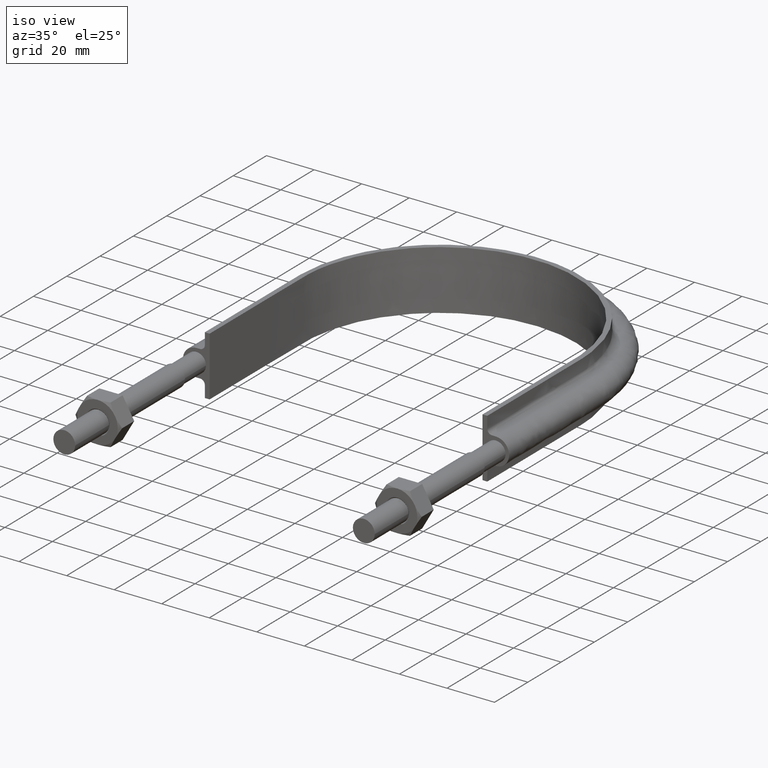
[diagram: clean part render]
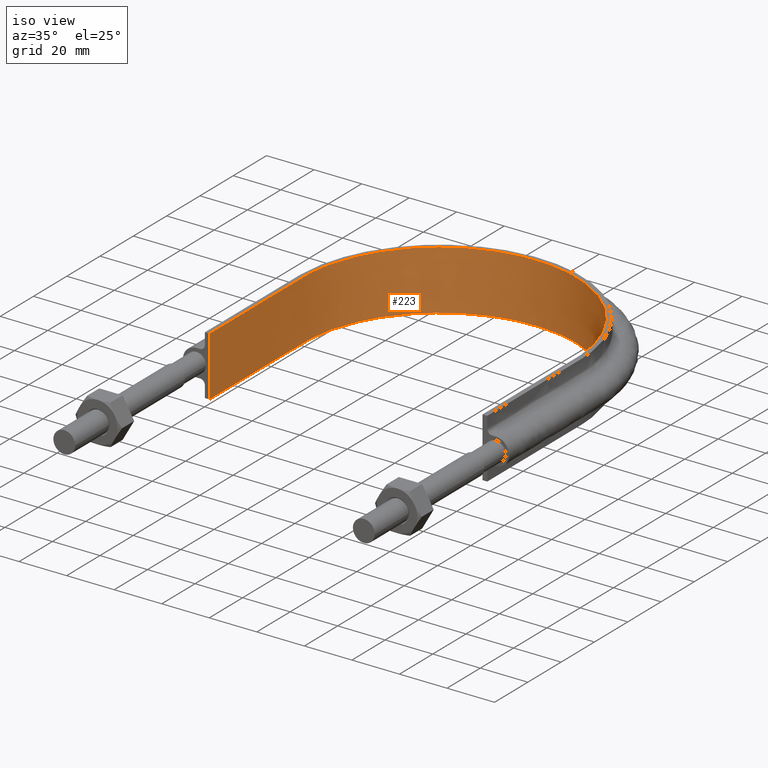
[diagram: tour spotlight — one face highlighted and labeled with its STEP entity id]
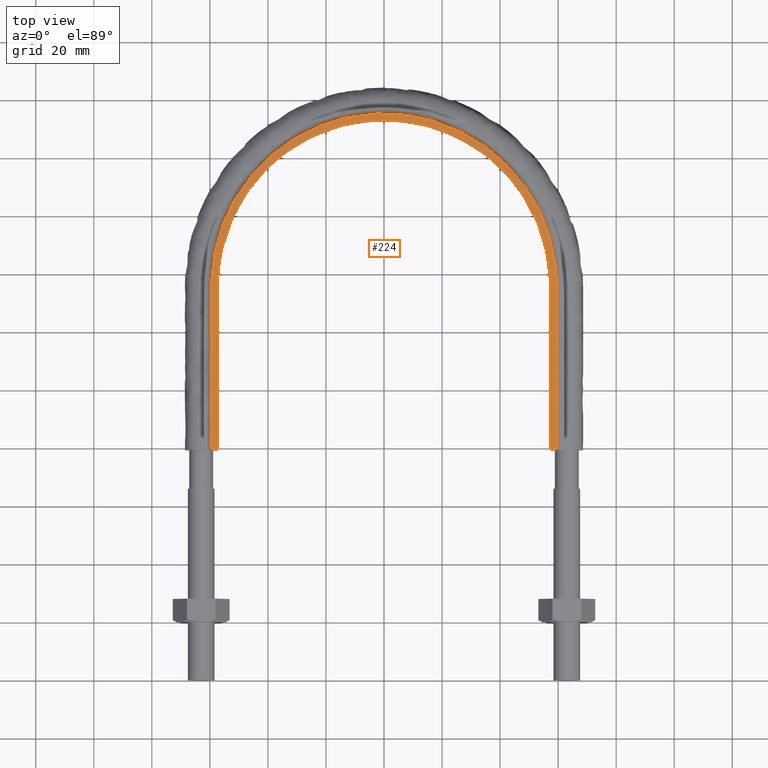
[diagram: tour spotlight — one face highlighted and labeled with its STEP entity id]
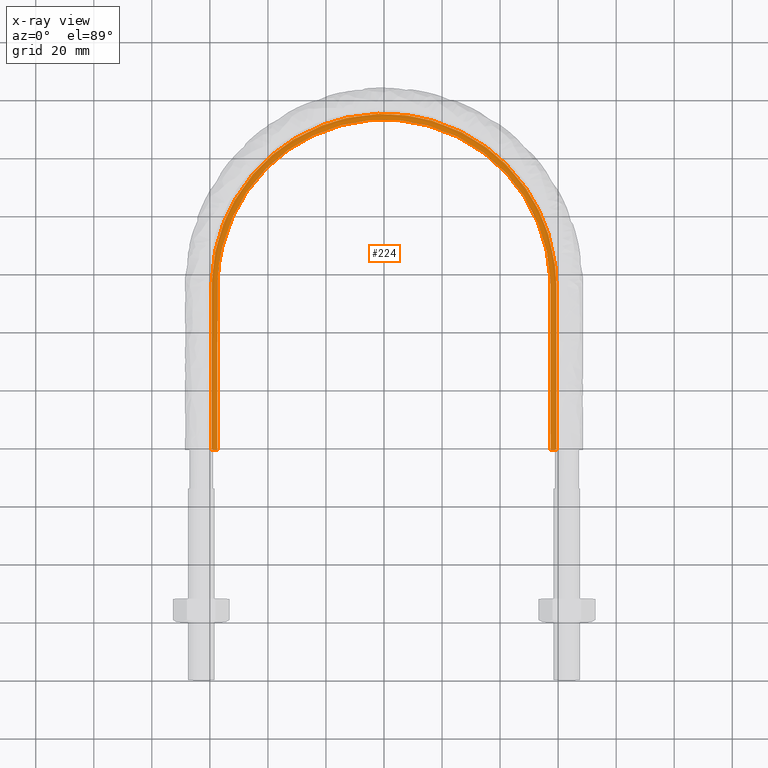
[diagram: x-ray of the same camera — body ghosted, this tour face saturated]
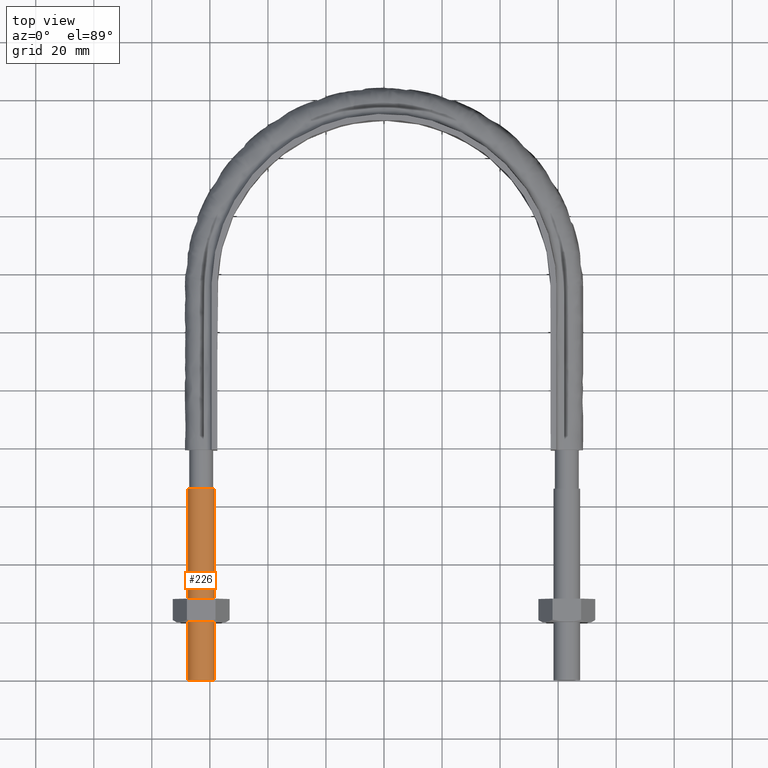
[diagram: tour spotlight — one face highlighted and labeled with its STEP entity id]
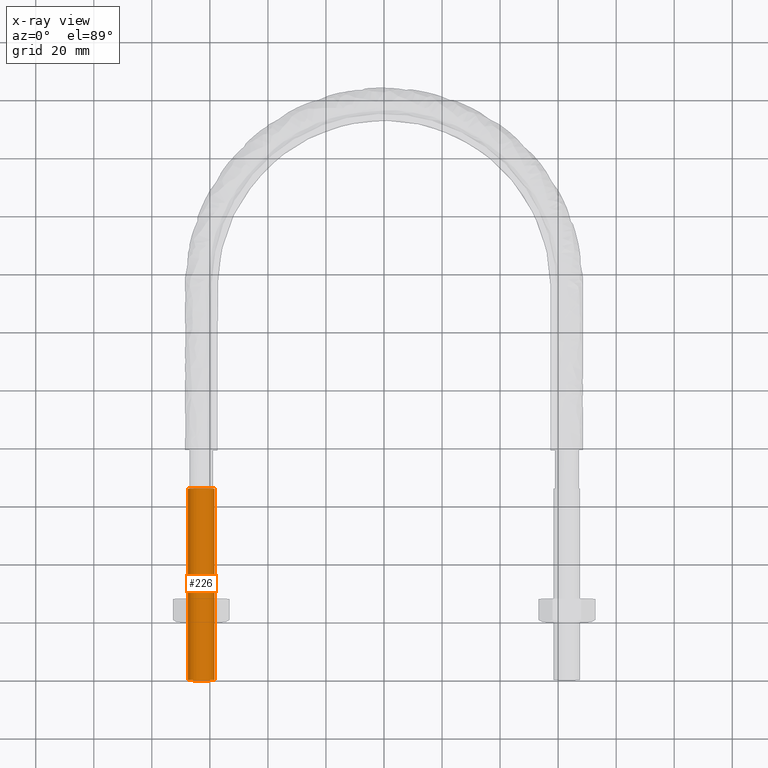
[diagram: x-ray of the same camera — body ghosted, this tour face saturated]
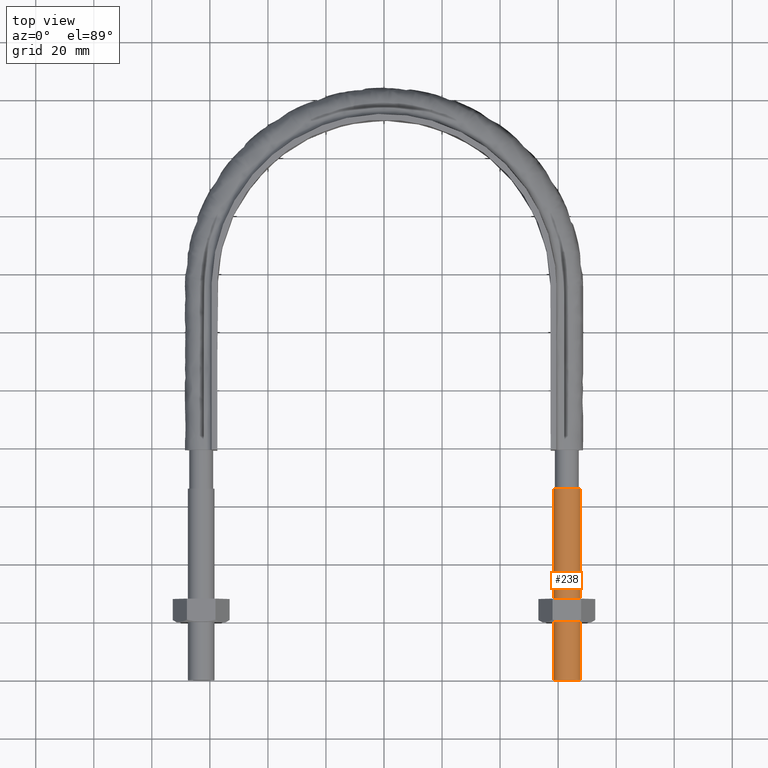
[diagram: tour spotlight — one face highlighted and labeled with its STEP entity id]
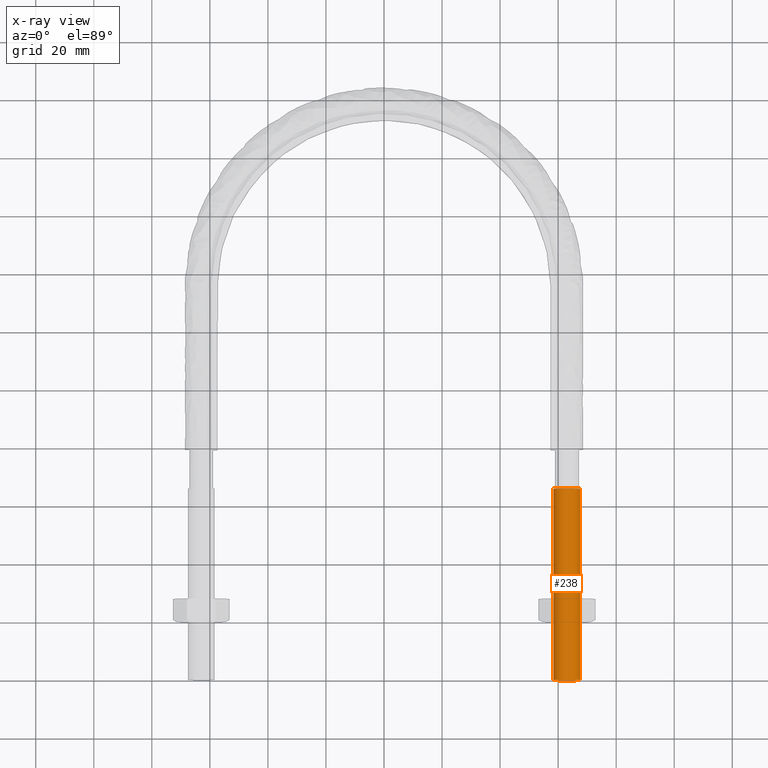
[diagram: x-ray of the same camera — body ghosted, this tour face saturated]
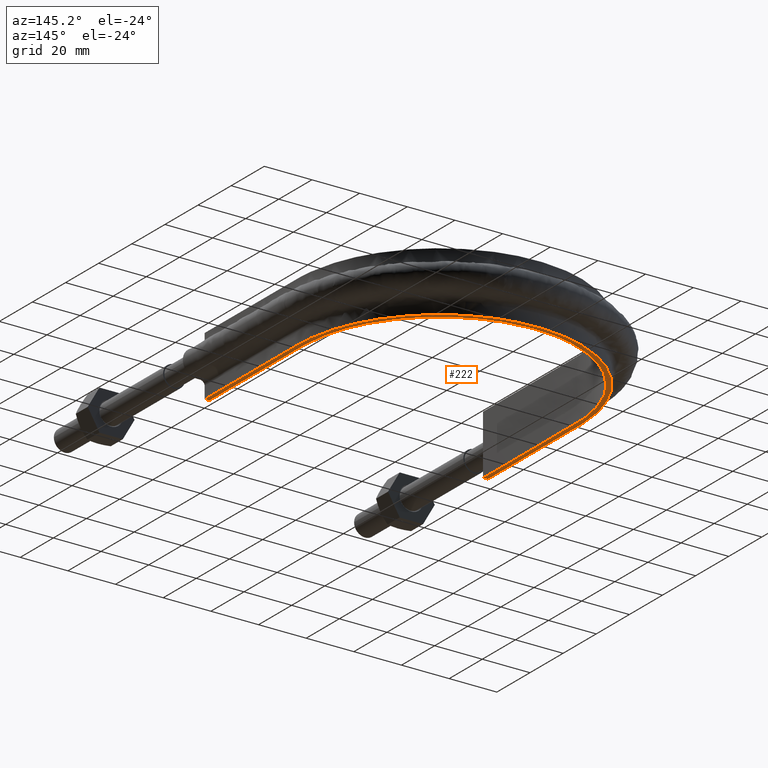
[diagram: tour spotlight — one face highlighted and labeled with its STEP entity id]
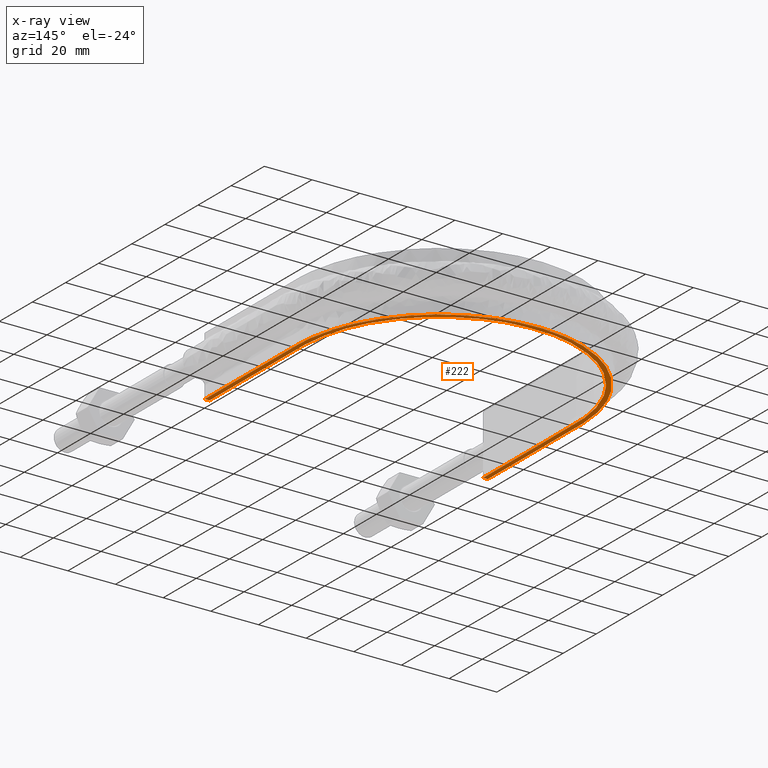
[diagram: x-ray of the same camera — body ghosted, this tour face saturated]
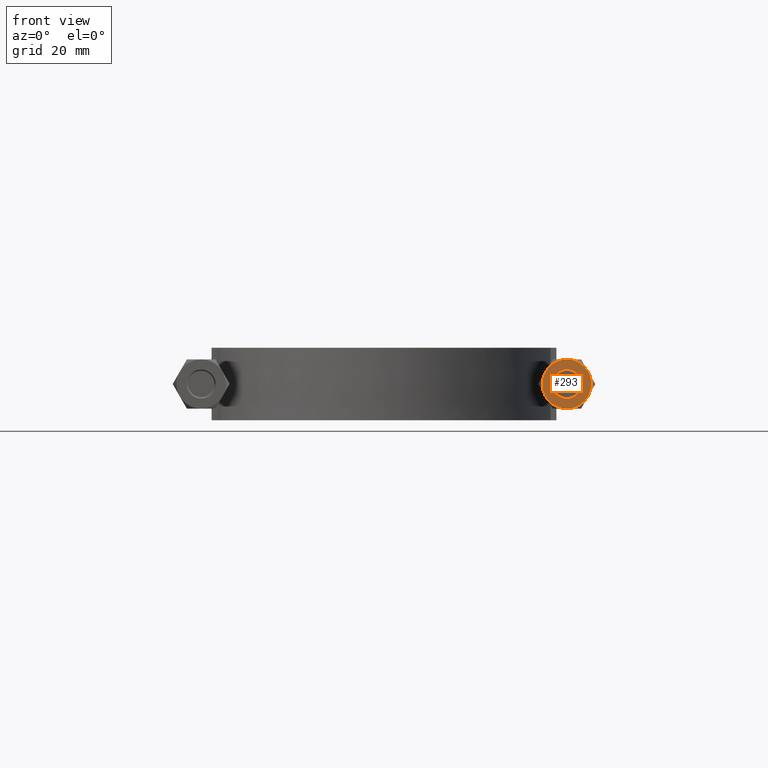
[diagram: tour spotlight — one face highlighted and labeled with its STEP entity id]
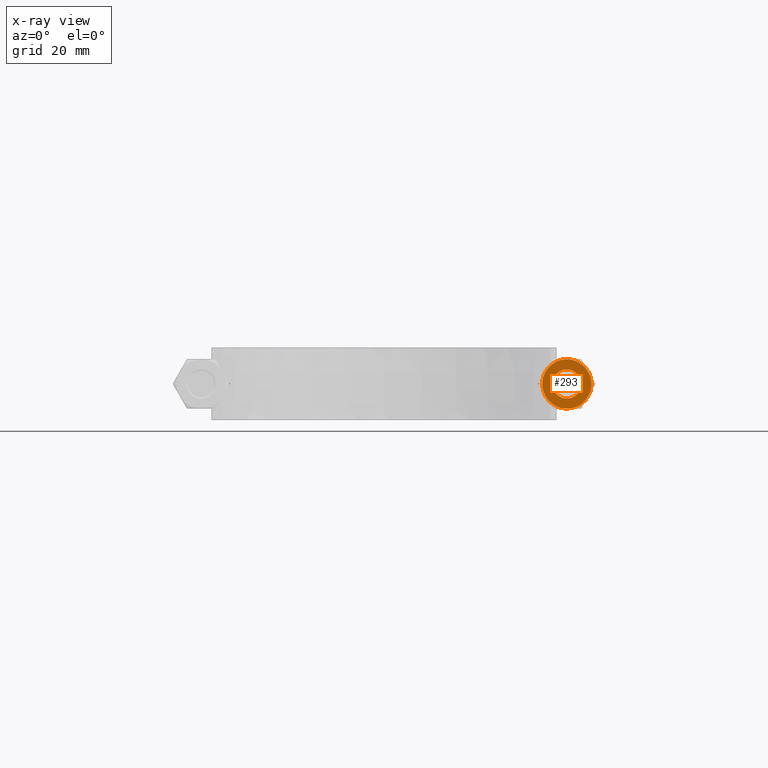
[diagram: x-ray of the same camera — body ghosted, this tour face saturated]
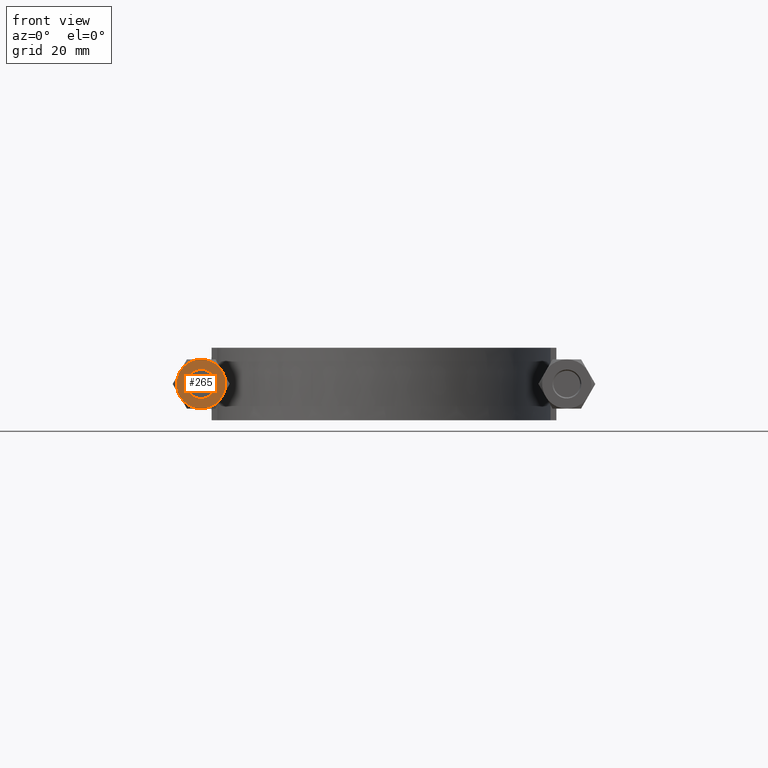
[diagram: tour spotlight — one face highlighted and labeled with its STEP entity id]
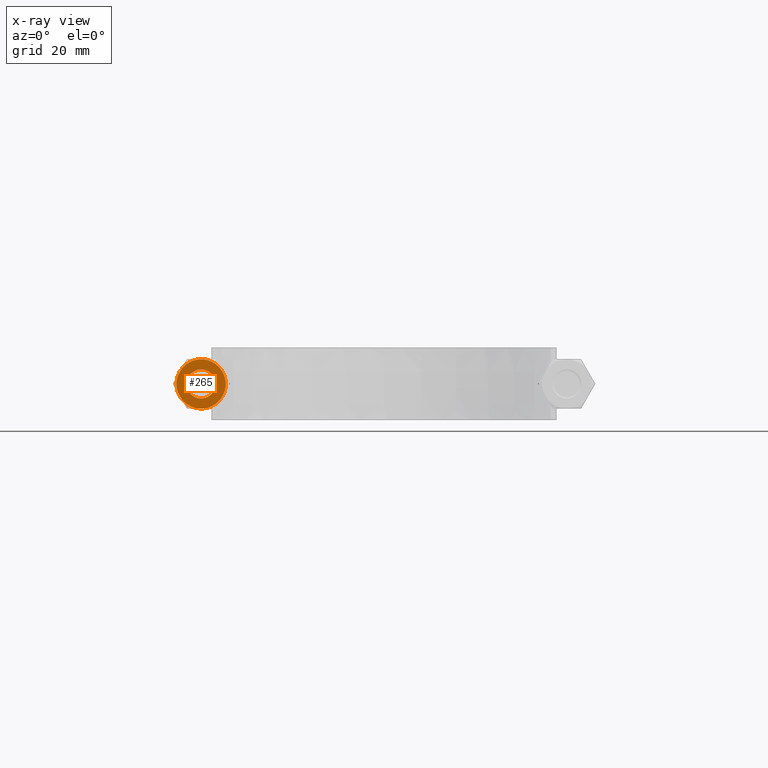
[diagram: x-ray of the same camera — body ghosted, this tour face saturated]
A machine part: a face-by-face anatomy tour. The part has 75 B-rep faces; the first image is the clean iso view, then the 7 largest visible faces are spotlighted one at a time (largest first), each with its STEP entity span.

Face 1 — iso view, entity #223. In plain terms, the highlighted face is a SurfaceOfExtrusion surface.
Definition (entity closure, byte-faithful):
#223 = ADVANCED_FACE( '', ( #303 ), #304, .T. );
#303 = FACE_OUTER_BOUND( '', #965, .T. );
#304 = SURFACE_OF_LINEAR_EXTRUSION( '', #966, #967 );
#965 = EDGE_LOOP( '', ( #1309, #1310, #1311, #1312 ) );
#966 = B_SPLINE_CURVE_WITH_KNOTS( '', 3, ( #1313, #1314, #1315, #1316, #1317, #1318, #1319, #1320, #1321, #1322, #1323, #1324, #1325, #1326, #1327, #1328 ), .UNSPECIFIED., .F., .F., ( 4, 3, 1, 1, 1, 1, 1, 1, 3, 4 ), ( -8.93693843594010, -8.00000000000000, -7.00000000000000, -6.00000000000000, -5.00000000000000, -4.00000000000000, -3.00000000000000, -2.00000000000000, -1.00000000000000, -0.0630615640599001 ), .UNSPECIFIED. );
#967 = VECTOR( '', #1329, 1000.00000000000 );
#1309 = ORIENTED_EDGE( '', *, *, #1817, .T. );
#1310 = ORIENTED_EDGE( '', *, *, #1827, .T. );
#1311 = ORIENTED_EDGE( '', *, *, #1825, .F. );
#1312 = ORIENTED_EDGE( '', *, *, #1828, .T. );
#1313 = CARTESIAN_POINT( '', ( 57.4000000000000, 79.3000000000000, 12.5000100000910 ) );
#1314 = CARTESIAN_POINT( '', ( 57.4000000000000, 98.0700000000000, 12.5000100000910 ) );
#1315 = CARTESIAN_POINT( '', ( 57.4000000000000, 116.840000000000, 12.5000100000910 ) );
#1316 = CARTESIAN_POINT( '', ( 57.4000000000000, 135.610000000000, 12.5000100000910 ) );
#1317 = CARTESIAN_POINT( '', ( 57.4000000000000, 144.180493203978, 12.5000100000910 ) );
#1318 = CARTESIAN_POINT( '', ( 53.4810424094545, 161.371852668646, 12.5000100000910 ) );
#1319 = CARTESIAN_POINT( '', ( 37.0100296725023, 182.017335605858, 12.5000100000910 ) );
#1320 = CARTESIAN_POINT( '', ( 13.2087266606841, 193.481567469912, 12.5000100000910 ) );
#1321 = CARTESIAN_POINT( '', ( -13.2087266606841, 193.481567469912, 12.5000100000910 ) );
#1322 = CARTESIAN_POINT( '', ( -37.0100296725023, 182.017335605858, 12.5000100000910 ) );
#1323 = CARTESIAN_POINT( '', ( -53.4810424094545, 161.371852668646, 12.5000100000910 ) );
#1324 = CARTESIAN_POINT( '', ( -57.4000000000000, 144.180493203978, 12.5000100000910 ) );
#1325 = CARTESIAN_POINT( '', ( -57.4000000000000, 135.610000000000, 12.5000100000910 ) );
#1326 = CARTESIAN_POINT( '', ( -57.4000000000000, 116.840000000000, 12.5000100000910 ) );
#1327 = CARTESIAN_POINT( '', ( -57.4000000000000, 98.0700000000000, 12.5000100000910 ) );
#1328 = CARTESIAN_POINT( '', ( -57.4000000000000, 79.3000000000000, 12.5000100000910 ) );
#1329 = DIRECTION( '', ( 0.000000000000000, 0.000000000000000, -1.00000000000000 ) );
#1817 = EDGE_CURVE( '', #1967, #1968, #1969, .T. );
#1825 = EDGE_CURVE( '', #1980, #1982, #1983, .T. );
#1827 = EDGE_CURVE( '', #1968, #1982, #1985, .F. );
#1828 = EDGE_CURVE( '', #1980, #1967, #1986, .T. );
#1967 = VERTEX_POINT( '', #2213 );
#1968 = VERTEX_POINT( '', #2214 );
#1969 = LINE( '', #2215, #2216 );
#1980 = VERTEX_POINT( '', #2319 );
#1982 = VERTEX_POINT( '', #2322 );
#1983 = LINE( '', #2323, #2324 );
#1985 = B_SPLINE_CURVE_WITH_KNOTS( '', 3, ( #2327, #2328, #2329, #2330, #2331, #2332, #2333, #2334, #2335, #2336, #2337, #2338, #2339, #2340, #2341, #2342 ), .UNSPECIFIED., .F., .F., ( 4, 3, 1, 1, 1, 1, 1, 1, 3, 4 ), ( -8.93693843594010, -8.00000000000000, -7.00000000000000, -6.00000000000000, -5.00000000000000, -4.00000000000000, -3.00000000000000, -2.00000000000000, -1.00000000000000, -0.0630615640599001 ), .UNSPECIFIED. );
#1986 = B_SPLINE_CURVE_WITH_KNOTS( '', 3, ( #2343, #2344, #2345, #2346, #2347, #2348, #2349, #2350, #2351, #2352, #2353, #2354, #2355, #2356, #2357, #2358, #2359, #2360, #2361, #2362, #2363, #2364, #2365, #2366, #2367, #2368, #2369, #2370, #2371, #2372, #2373, #2374, #2375, #2376, #2377, #2378, #2379, #2380, #2381, #2382, #2383, #2384, #2385, #2386, #2387, #2388, #2389, #2390, #2391, #2392, #2393, #2394, #2395, #2396, #2397, #2398, #2399, #2400, #2401, #2402, #2403, #2404, #2405, #2406, #2407, #2408, #2409, #2410, #2411, #2412, #2413, #2414, #2415, #2416, #2417, #2418, #2419, #2420, #2421, #2422, #2423, #2424, #2425, #2426, #2427, #2428, #2429, #2430 ), .UNSPECIFIED., .F., .F., ( 4, 1, 2, 2, 2, 2, 2, 2, 2, 2, 2, 2, 2, 2, 2, 2, 2, 2, 2, 2, 2, 2, 2, 2, 2, 2, 2, 2, 2, 2, 2, 2, 2, 2, 2, 2, 2, 2, 2, 2, 2, 2, 2, 1, 4 ), ( 1.38777878078145E-017, 0.0368006591004065, 0.0552009886506098, 0.0575010298443853, 0.0598010710381607, 0.0644011534257116, 0.0736013182008134, 0.0782014005883642, 0.0805014417821396, 0.0828014829759150, 0.0920016477510166, 0.0966017301385674, 0.0989017713323428, 0.101201812526118, 0.110401977301220, 0.115002059688771, 0.117302100882546, 0.119602142076322, 0.128802306851423, 0.133402389238974, 0.135702430432750, 0.138002471626525, 0.147202636401627, 0.156402801176729, 0.158702842370504, 0.161002883564280, 0.165602965951830, 0.174803130726932, 0.177103171920708, 0.179403213114483, 0.184003295502034, 0.193203460277136, 0.195503501470911, 0.197803542664687, 0.202403625052238, 0.211603789827340, 0.213903831021115, 0.216203872214890, 0.220803954602441, 0.230004119377543, 0.234604201765094, 0.236904242958870, 0.239204284152645, 0.257604613702848, 0.294405272803255 ), .UNSPECIFIED. );
#2213 = CARTESIAN_POINT( '', ( -57.4000000000000, 79.3000000000000, 12.5000000000000 ) );
#2214 = CARTESIAN_POINT( '', ( -57.4000000000000, 79.3000000000000, -12.5000000000000 ) );
#2215 = CARTESIAN_POINT( '', ( -57.4000000000000, 79.3000000000000, 12.5000100000910 ) );
#2216 = VECTOR( '', #2855, 1000.00000000000 );
#2319 = CARTESIAN_POINT( '', ( 57.4000000000000, 79.3000000000000, 12.5000000000000 ) );
#2322 = CARTESIAN_POINT( '', ( 57.4000000000000, 79.3000000000000, -12.5000000000000 ) );
#2323 = CARTESIAN_POINT( '', ( 57.4000000000000, 79.3000000000000, 12.5000100000910 ) );
#2324 = VECTOR( '', #2859, 1000.00000000000 );
#2327 = CARTESIAN_POINT( '', ( 57.4000000000000, 79.3000000000000, -12.5000000000000 ) );
#2328 = CARTESIAN_POINT( '', ( 57.4000000000000, 98.0700000000000, -12.5000000000000 ) );
#2329 = CARTESIAN_POINT( '', ( 57.4000000000000, 116.840000000000, -12.5000000000000 ) );
#2330 = CARTESIAN_POINT( '', ( 57.4000000000000, 135.610000000000, -12.5000000000000 ) );
#2331 = CARTESIAN_POINT( '', ( 57.4000000000000, 144.180493203978, -12.5000000000000 ) );
#2332 = CARTESIAN_POINT( '', ( 53.4810424094545, 161.371852668646, -12.5000000000000 ) );
#2333 = CARTESIAN_POINT( '', ( 37.0100296725023, 182.017335605858, -12.5000000000000 ) );
#2334 = CARTESIAN_POINT( '', ( 13.2087266606841, 193.481567469912, -12.5000000000000 ) );
#2335 = CARTESIAN_POINT( '', ( -13.2087266606841, 193.481567469912, -12.5000000000000 ) );
#2336 = CARTESIAN_POINT( '', ( -37.0100296725023, 182.017335605858, -12.5000000000000 ) );
#2337 = CARTESIAN_POINT( '', ( -53.4810424094545, 161.371852668646, -12.5000000000000 ) );
#2338 = CARTESIAN_POINT( '', ( -57.4000000000000, 144.180493203978, -12.5000000000000 ) );
#2339 = CARTESIAN_POINT( '', ( -57.4000000000000, 135.610000000000, -12.5000000000000 ) );
#2340 = CARTESIAN_POINT( '', ( -57.4000000000000, 116.840000000000, -12.5000000000000 ) );
#2341 = CARTESIAN_POINT( '', ( -57.4000000000000, 98.0700000000000, -12.5000000000000 ) );
#2342 = CARTESIAN_POINT( '', ( -57.4000000000000, 79.3000000000000, -12.5000000000000 ) );
#2343 = CARTESIAN_POINT( '', ( 57.4000000000000, 79.3000000000000, 12.5000000000000 ) );
#2344 = CARTESIAN_POINT( '', ( 57.4000000000000, 91.5668971504807, 12.5000000000000 ) );
#2345 = CARTESIAN_POINT( '', ( 57.4000000000000, 109.967242876202, 12.5000000000000 ) );
#2346 = CARTESIAN_POINT( '', ( 57.4000000000000, 128.367588601923, 12.5000000000000 ) );
#2347 = CARTESIAN_POINT( '', ( 57.4000000000000, 135.267718249068, 12.5000000000000 ) );
#2348 = CARTESIAN_POINT( '', ( 57.4036066457802, 136.034404103252, 12.5000000000000 ) );
#2349 = CARTESIAN_POINT( '', ( 57.3712056389476, 137.567723284528, 12.5000000000000 ) );
#2350 = CARTESIAN_POINT( '', ( 57.3393359788148, 138.335375304587, 12.5000000000000 ) );
#2351 = CARTESIAN_POINT( '', ( 57.1976234100830, 140.630663469964, 12.5000000000000 ) );
#2352 = CARTESIAN_POINT( '', ( 57.0421967518527, 142.147180453960, 12.5000000000000 ) );
#2353 = CARTESIAN_POINT( '', ( 56.4004013757545, 146.657352705709, 12.5000000000000 ) );
#2354 = CARTESIAN_POINT( '', ( 55.7399883057786, 149.611959318388, 12.5000000000000 ) );
#2355 = CARTESIAN_POINT( '', ( 54.4013047063943, 153.965777471156, 12.5000000000000 ) );
#2356 = CARTESIAN_POINT( '', ( 53.8966972928596, 155.403952132018, 12.5000000000000 ) );
#2357 = CARTESIAN_POINT( '', ( 53.0487681131459, 157.540793277909, 12.5000000000000 ) );
#2358 = CARTESIAN_POINT( '', ( 52.7511260023257, 158.248939019185, 12.5000000000000 ) );
#2359 = CARTESIAN_POINT( '', ( 52.1306487491249, 159.645579267383, 12.5000000000000 ) );
#2360 = CARTESIAN_POINT( '', ( 51.8071932048134, 160.335643312284, 12.5000000000000 ) );
#2361 = CARTESIAN_POINT( '', ( 50.1243560027938, 163.745011154793, 12.5000000000000 ) );
#2362 = CARTESIAN_POINT( '', ( 48.5704537429598, 166.342805722192, 12.5000000000000 ) );
#2363 = CARTESIAN_POINT( '', ( 45.9378759805746, 170.051022440817, 12.5000000000000 ) );
#2364 = CARTESIAN_POINT( '', ( 45.0097482486540, 171.255485755391, 12.5000000000000 ) );
#2365 = CARTESIAN_POINT( '', ( 43.5399840512470, 173.013724230868, 12.5000000000000 ) );
#2366 = CARTESIAN_POINT( '', ( 43.0360401908088, 173.592882580464, 12.5000000000000 ) );
#2367 = CARTESIAN_POINT( '', ( 42.0071679355062, 174.728730541199, 12.5000000000000 ) );
#2368 = CARTESIAN_POINT( '', ( 41.4830799771195, 175.284602734684, 12.5000000000000 ) );
#2369 = CARTESIAN_POINT( '', ( 38.8150256208345, 178.004509636062, 12.5000000000000 ) );
#2370 = CARTESIAN_POINT( '', ( 36.5289375337688, 179.991083678086, 12.5000000000000 ) );
#2371 = CARTESIAN_POINT( '', ( 32.8725465474708, 182.687177301449, 12.5000000000000 ) );
#2372 = CARTESIAN_POINT( '', ( 31.6159998625507, 183.538738914915, 12.5000000000000 ) );
#2373 = CARTESIAN_POINT( '', ( 29.6741600235066, 184.744883379300, 12.5000000000000 ) );
#2374 = CARTESIAN_POINT( '', ( 29.0173621705766, 185.135046972002, 12.5000000000000 ) );
#2375 = CARTESIAN_POINT( '', ( 27.6844813094560, 185.891293691475, 12.5000000000000 ) );
#2376 = CARTESIAN_POINT( '', ( 27.0092860879621, 186.256786401143, 12.5000000000000 ) );
#2377 = CARTESIAN_POINT( '', ( 23.6148955512581, 188.008321558919, 12.5000000000000 ) );
#2378 = CARTESIAN_POINT( '', ( 20.8188839208598, 189.181221130253, 12.5000000000000 ) );
#2379 = CARTESIAN_POINT( '', ( 16.5063575914378, 190.604430974849, 12.5000000000000 ) );
#2380 = CARTESIAN_POINT( '', ( 15.0489724833801, 191.022456876127, 12.5000000000000 ) );
#2381 = CARTESIAN_POINT( '', ( 12.8322199583376, 191.562489310090, 12.5000000000000 ) );
#2382 = CARTESIAN_POINT( '', ( 12.0881682606315, 191.727937467103, 12.5000000000000 ) );
#2383 = CARTESIAN_POINT( '', ( 10.5896803128534, 192.029378956679, 12.5000000000000 ) );
#2384 = CARTESIAN_POINT( '', ( 9.83354107507642, 192.165648447286, 12.5000000000000 ) );
#2385 = CARTESIAN_POINT( '', ( 6.05033946504669, 192.768951449387, 12.5000000000000 ) );
#2386 = CARTESIAN_POINT( '', ( 3.02331961872748, 193.004107282322, 12.5000000000000 ) );
#2387 = CARTESIAN_POINT( '', ( -3.03159229771705, 193.003674706655, 12.5000000000000 ) );
#2388 = CARTESIAN_POINT( '', ( -6.05948435362845, 192.768093969407, 12.5000000000000 ) );
#2389 = CARTESIAN_POINT( '', ( -9.84492369258702, 192.163681704027, 12.5000000000000 ) );
#2390 = CARTESIAN_POINT( '', ( -10.6002721762767, 192.027389123450, 12.5000000000000 ) );
#2391 = CARTESIAN_POINT( '', ( -12.0978185021847, 191.725853405145, 12.5000000000000 ) );
#2392 = CARTESIAN_POINT( '', ( -12.8414452252183, 191.560367013091, 12.5000000000000 ) );
#2393 = CARTESIAN_POINT( '', ( -15.0570550081488, 191.020235378931, 12.5000000000000 ) );
#2394 = CARTESIAN_POINT( '', ( -16.5138535706966, 190.602163316093, 12.5000000000000 ) );
#2395 = CARTESIAN_POINT( '', ( -20.8250913381979, 189.178758755140, 12.5000000000000 ) );
#2396 = CARTESIAN_POINT( '', ( -23.6208691240754, 188.005657850112, 12.5000000000000 ) );
#2397 = CARTESIAN_POINT( '', ( -27.0156329102763, 186.253406103617, 12.5000000000000 ) );
#2398 = CARTESIAN_POINT( '', ( -27.6910147520962, 185.887696886022, 12.5000000000000 ) );
#2399 = CARTESIAN_POINT( '', ( -29.0234575114926, 185.131477440111, 12.5000000000000 ) );
#2400 = CARTESIAN_POINT( '', ( -29.6800585802789, 184.741324040592, 12.5000000000000 ) );
#2401 = CARTESIAN_POINT( '', ( -31.6213689725300, 183.535193660409, 12.5000000000000 ) );
#2402 = CARTESIAN_POINT( '', ( -32.8776437603807, 182.683619457022, 12.5000000000000 ) );
#2403 = CARTESIAN_POINT( '', ( -36.5334220827475, 179.987374398228, 12.5000000000000 ) );
#2404 = CARTESIAN_POINT( '', ( -38.8193751731555, 178.000549631674, 12.5000000000000 ) );
#2405 = CARTESIAN_POINT( '', ( -41.4874843976752, 175.279993585617, 12.5000000000000 ) );
#2406 = CARTESIAN_POINT( '', ( -42.0115944312470, 174.723974530570, 12.5000000000000 ) );
#2407 = CARTESIAN_POINT( '', ( -43.0405299781914, 173.587794110931, 12.5000000000000 ) );
#2408 = CARTESIAN_POINT( '', ( -43.5442393747026, 173.008765306377, 12.5000000000000 ) );
#2409 = CARTESIAN_POINT( '', ( -45.0135877457228, 171.250627800789, 12.5000000000000 ) );
#2410 = CARTESIAN_POINT( '', ( -45.9415210243653, 170.046162448528, 12.5000000000000 ) );
#2411 = CARTESIAN_POINT( '', ( -48.5736917716305, 166.337694282144, 12.5000000000000 ) );
#2412 = CARTESIAN_POINT( '', ( -50.1275589688897, 163.739408642437, 12.5000000000000 ) );
#2413 = CARTESIAN_POINT( '', ( -51.8104283189418, 160.328866111214, 12.5000000000000 ) );
#2414 = CARTESIAN_POINT( '', ( -52.1338941649285, 159.638538815899, 12.5000000000000 ) );
#2415 = CARTESIAN_POINT( '', ( -52.7543954652597, 158.241312252746, 12.5000000000000 ) );
#2416 = CARTESIAN_POINT( '', ( -53.0520667494113, 157.532782600104, 12.5000000000000 ) );
#2417 = CARTESIAN_POINT( '', ( -53.8993605656225, 155.396631283103, 12.5000000000000 ) );
#2418 = CARTESIAN_POINT( '', ( -54.4036525659498, 153.958777453083, 12.5000000000000 ) );
#2419 = CARTESIAN_POINT( '', ( -55.7415838846628, 149.605493588584, 12.5000000000000 ) );
#2420 = CARTESIAN_POINT( '', ( -56.4017548199478, 146.650676383386, 12.5000000000000 ) );
#2421 = CARTESIAN_POINT( '', ( -57.0431251208449, 142.139233624254, 12.5000000000000 ) );
#2422 = CARTESIAN_POINT( '', ( -57.1984001624354, 140.622133130998, 12.5000000000000 ) );
#2423 = CARTESIAN_POINT( '', ( -57.3398068241163, 138.325705356889, 12.5000000000000 ) );
#2424 = CARTESIAN_POINT( '', ( -57.3715266179354, 137.558403382567, 12.5000000000000 ) );
#2425 = CARTESIAN_POINT( '', ( -57.4036727794919, 136.025333757737, 12.5000000000000 ) );
#2426 = CARTESIAN_POINT( '', ( -57.4000000000000, 135.258769855845, 12.5000000000000 ) );
#2427 = CARTESIAN_POINT( '', ( -57.4000000000000, 128.359743435262, 12.5000000000000 ) );
#2428 = CARTESIAN_POINT( '', ( -57.4000000000000, 109.962339647039, 12.5000000000000 ) );
#2429 = CARTESIAN_POINT( '', ( -57.4000000000000, 91.5649358588154, 12.5000000000000 ) );
#2430 = CARTESIAN_POINT( '', ( -57.4000000000000, 79.2999999999999, 12.5000000000000 ) );
#2855 = DIRECTION( '', ( 0.000000000000000, 0.000000000000000, -1.00000000000000 ) );
#2859 = DIRECTION( '', ( 0.000000000000000, 0.000000000000000, -1.00000000000000 ) );

Face 2 — top view, entity #224. An x-ray twin of the same camera follows (body ghosted, this face saturated) — the face is partly hidden behind the body. In plain terms, the highlighted planar face has unit normal (0, 0, 1).
Definition (entity closure, byte-faithful):
#224 = ADVANCED_FACE( '', ( #305 ), #306, .T. );
#305 = FACE_OUTER_BOUND( '', #968, .T. );
#306 = PLANE( '', #969 );
#968 = EDGE_LOOP( '', ( #1330, #1331, #1332, #1333 ) );
#969 = AXIS2_PLACEMENT_3D( '', #1334, #1335, #1336 );
#1330 = ORIENTED_EDGE( '', *, *, #1818, .T. );
#1331 = ORIENTED_EDGE( '', *, *, #1828, .F. );
#1332 = ORIENTED_EDGE( '', *, *, #1824, .T. );
#1333 = ORIENTED_EDGE( '', *, *, #1822, .F. );
#1334 = CARTESIAN_POINT( '', ( 75.0000000000000, 209.300000000000, 12.5000000000000 ) );
#1335 = DIRECTION( '', ( 0.000000000000000, 0.000000000000000, 1.00000000000000 ) );
#1336 = DIRECTION( '', ( 1.00000000000000, 0.000000000000000, 0.000000000000000 ) );
#1818 = EDGE_CURVE( '', #1970, #1967, #1971, .F. );
#1822 = EDGE_CURVE( '', #1970, #1977, #1978, .T. );
#1824 = EDGE_CURVE( '', #1980, #1977, #1981, .F. );
#1828 = EDGE_CURVE( '', #1980, #1967, #1986, .T. );
#1967 = VERTEX_POINT( '', #2213 );
#1970 = VERTEX_POINT( '', #2217 );
#1971 = LINE( '', #2218, #2219 );
#1977 = VERTEX_POINT( '', #2271 );
#1978 = B_SPLINE_CURVE_WITH_KNOTS( '', 3, ( #2272, #2273, #2274, #2275, #2276, #2277, #2278, #2279, #2280, #2281, #2282, #2283, #2284, #2285, #2286, #2287 ), .UNSPECIFIED., .F., .F., ( 4, 3, 1, 1, 1, 1, 1, 1, 3, 4 ), ( 0.0630615640598999, 1.00000000000000, 2.00000000000000, 3.00000000000000, 4.00000000000000, 5.00000000000000, 6.00000000000000, 7.00000000000000, 8.00000000000000, 8.93693843594010 ), .UNSPECIFIED. );
#1980 = VERTEX_POINT( '', #2319 );
#1981 = LINE( '', #2320, #2321 );
#1986 = B_SPLINE_CURVE_WITH_KNOTS( '', 3, ( #2343, #2344, #2345, #2346, #2347, #2348, #2349, #2350, #2351, #2352, #2353, #2354, #2355, #2356, #2357, #2358, #2359, #2360, #2361, #2362, #2363, #2364, #2365, #2366, #2367, #2368, #2369, #2370, #2371, #2372, #2373, #2374, #2375, #2376, #2377, #2378, #2379, #2380, #2381, #2382, #2383, #2384, #2385, #2386, #2387, #2388, #2389, #2390, #2391, #2392, #2393, #2394, #2395, #2396, #2397, #2398, #2399, #2400, #2401, #2402, #2403, #2404, #2405, #2406, #2407, #2408, #2409, #2410, #2411, #2412, #2413, #2414, #2415, #2416, #2417, #2418, #2419, #2420, #2421, #2422, #2423, #2424, #2425, #2426, #2427, #2428, #2429, #2430 ), .UNSPECIFIED., .F., .F., ( 4, 1, 2, 2, 2, 2, 2, 2, 2, 2, 2, 2, 2, 2, 2, 2, 2, 2, 2, 2, 2, 2, 2, 2, 2, 2, 2, 2, 2, 2, 2, 2, 2, 2, 2, 2, 2, 2, 2, 2, 2, 2, 2, 1, 4 ), ( 1.38777878078145E-017, 0.0368006591004065, 0.0552009886506098, 0.0575010298443853, 0.0598010710381607, 0.0644011534257116, 0.0736013182008134, 0.0782014005883642, 0.0805014417821396, 0.0828014829759150, 0.0920016477510166, 0.0966017301385674, 0.0989017713323428, 0.101201812526118, 0.110401977301220, 0.115002059688771, 0.117302100882546, 0.119602142076322, 0.128802306851423, 0.133402389238974, 0.135702430432750, 0.138002471626525, 0.147202636401627, 0.156402801176729, 0.158702842370504, 0.161002883564280, 0.165602965951830, 0.174803130726932, 0.177103171920708, 0.179403213114483, 0.184003295502034, 0.193203460277136, 0.195503501470911, 0.197803542664687, 0.202403625052238, 0.211603789827340, 0.213903831021115, 0.216203872214890, 0.220803954602441, 0.230004119377543, 0.234604201765094, 0.236904242958870, 0.239204284152645, 0.257604613702848, 0.294405272803255 ), .UNSPECIFIED. );
#2213 = CARTESIAN_POINT( '', ( -57.4000000000000, 79.3000000000000, 12.5000000000000 ) );
#2217 = CARTESIAN_POINT( '', ( -59.4000000000000, 79.3000000000000, 12.5000000000000 ) );
#2218 = CARTESIAN_POINT( '', ( 75.0000000000000, 79.3000000000000, 12.5000000000000 ) );
#2219 = VECTOR( '', #2856, 1000.00000000000 );
#2271 = CARTESIAN_POINT( '', ( 59.4000000000000, 79.3000000000000, 12.5000000000000 ) );
#2272 = CARTESIAN_POINT( '', ( -59.4000000000000, 79.3000000000000, 12.5000000000000 ) );
#2273 = CARTESIAN_POINT( '', ( -59.4000000000000, 98.0700000000001, 12.5000000000000 ) );
#2274 = CARTESIAN_POINT( '', ( -59.4000000000000, 116.840000000000, 12.5000000000000 ) );
#2275 = CARTESIAN_POINT( '', ( -59.4000000000000, 135.610000000000, 12.5000000000000 ) );
#2276 = CARTESIAN_POINT( '', ( -59.4000000000000, 144.484817836499, 12.5000000000000 ) );
#2277 = CARTESIAN_POINT( '', ( -55.3444933644878, 162.266836188810, 12.5000000000000 ) );
#2278 = CARTESIAN_POINT( '', ( -38.2995777447149, 183.635011205915, 12.5000000000000 ) );
#2279 = CARTESIAN_POINT( '', ( -13.6689610391051, 195.497859339137, 12.5000000000000 ) );
#2280 = CARTESIAN_POINT( '', ( 13.6689610391052, 195.497859339137, 12.5000000000000 ) );
#2281 = CARTESIAN_POINT( '', ( 38.2995777447150, 183.635011205915, 12.5000000000000 ) );
#2282 = CARTESIAN_POINT( '', ( 55.3444933644878, 162.266836188810, 12.5000000000000 ) );
#2283 = CARTESIAN_POINT( '', ( 59.4000000000000, 144.484817836499, 12.5000000000000 ) );
#2284 = CARTESIAN_POINT( '', ( 59.4000000000000, 135.610000000000, 12.5000000000000 ) );
#2285 = CARTESIAN_POINT( '', ( 59.4000000000000, 116.840000000000, 12.5000000000000 ) );
#2286 = CARTESIAN_POINT( '', ( 59.4000000000000, 98.0700000000000, 12.5000000000000 ) );
#2287 = CARTESIAN_POINT( '', ( 59.4000000000000, 79.3000000000000, 12.5000000000000 ) );
#2319 = CARTESIAN_POINT( '', ( 57.4000000000000, 79.3000000000000, 12.5000000000000 ) );
#2320 = CARTESIAN_POINT( '', ( 75.0000000000000, 79.3000000000000, 12.5000000000000 ) );
#2321 = VECTOR( '', #2858, 1000.00000000000 );
#2343 = CARTESIAN_POINT( '', ( 57.4000000000000, 79.3000000000000, 12.5000000000000 ) );
#2344 = CARTESIAN_POINT( '', ( 57.4000000000000, 91.5668971504807, 12.5000000000000 ) );
#2345 = CARTESIAN_POINT( '', ( 57.4000000000000, 109.967242876202, 12.5000000000000 ) );
#2346 = CARTESIAN_POINT( '', ( 57.4000000000000, 128.367588601923, 12.5000000000000 ) );
#2347 = CARTESIAN_POINT( '', ( 57.4000000000000, 135.267718249068, 12.5000000000000 ) );
#2348 = CARTESIAN_POINT( '', ( 57.4036066457802, 136.034404103252, 12.5000000000000 ) );
#2349 = CARTESIAN_POINT( '', ( 57.3712056389476, 137.567723284528, 12.5000000000000 ) );
#2350 = CARTESIAN_POINT( '', ( 57.3393359788148, 138.335375304587, 12.5000000000000 ) );
#2351 = CARTESIAN_POINT( '', ( 57.1976234100830, 140.630663469964, 12.5000000000000 ) );
#2352 = CARTESIAN_POINT( '', ( 57.0421967518527, 142.147180453960, 12.5000000000000 ) );
#2353 = CARTESIAN_POINT( '', ( 56.4004013757545, 146.657352705709, 12.5000000000000 ) );
#2354 = CARTESIAN_POINT( '', ( 55.7399883057786, 149.611959318388, 12.5000000000000 ) );
#2355 = CARTESIAN_POINT( '', ( 54.4013047063943, 153.965777471156, 12.5000000000000 ) );
#2356 = CARTESIAN_POINT( '', ( 53.8966972928596, 155.403952132018, 12.5000000000000 ) );
#2357 = CARTESIAN_POINT( '', ( 53.0487681131459, 157.540793277909, 12.5000000000000 ) );
#2358 = CARTESIAN_POINT( '', ( 52.7511260023257, 158.248939019185, 12.5000000000000 ) );
#2359 = CARTESIAN_POINT( '', ( 52.1306487491249, 159.645579267383, 12.5000000000000 ) );
#2360 = CARTESIAN_POINT( '', ( 51.8071932048134, 160.335643312284, 12.5000000000000 ) );
#2361 = CARTESIAN_POINT( '', ( 50.1243560027938, 163.745011154793, 12.5000000000000 ) );
#2362 = CARTESIAN_POINT( '', ( 48.5704537429598, 166.342805722192, 12.5000000000000 ) );
#2363 = CARTESIAN_POINT( '', ( 45.9378759805746, 170.051022440817, 12.5000000000000 ) );
#2364 = CARTESIAN_POINT( '', ( 45.0097482486540, 171.255485755391, 12.5000000000000 ) );
#2365 = CARTESIAN_POINT( '', ( 43.5399840512470, 173.013724230868, 12.5000000000000 ) );
#2366 = CARTESIAN_POINT( '', ( 43.0360401908088, 173.592882580464, 12.5000000000000 ) );
#2367 = CARTESIAN_POINT( '', ( 42.0071679355062, 174.728730541199, 12.5000000000000 ) );
#2368 = CARTESIAN_POINT( '', ( 41.4830799771195, 175.284602734684, 12.5000000000000 ) );
#2369 = CARTESIAN_POINT( '', ( 38.8150256208345, 178.004509636062, 12.5000000000000 ) );
#2370 = CARTESIAN_POINT( '', ( 36.5289375337688, 179.991083678086, 12.5000000000000 ) );
#2371 = CARTESIAN_POINT( '', ( 32.8725465474708, 182.687177301449, 12.5000000000000 ) );
#2372 = CARTESIAN_POINT( '', ( 31.6159998625507, 183.538738914915, 12.5000000000000 ) );
#2373 = CARTESIAN_POINT( '', ( 29.6741600235066, 184.744883379300, 12.5000000000000 ) );
#2374 = CARTESIAN_POINT( '', ( 29.0173621705766, 185.135046972002, 12.5000000000000 ) );
#2375 = CARTESIAN_POINT( '', ( 27.6844813094560, 185.891293691475, 12.5000000000000 ) );
#2376 = CARTESIAN_POINT( '', ( 27.0092860879621, 186.256786401143, 12.5000000000000 ) );
#2377 = CARTESIAN_POINT( '', ( 23.6148955512581, 188.008321558919, 12.5000000000000 ) );
#2378 = CARTESIAN_POINT( '', ( 20.8188839208598, 189.181221130253, 12.5000000000000 ) );
#2379 = CARTESIAN_POINT( '', ( 16.5063575914378, 190.604430974849, 12.5000000000000 ) );
#2380 = CARTESIAN_POINT( '', ( 15.0489724833801, 191.022456876127, 12.5000000000000 ) );
#2381 = CARTESIAN_POINT( '', ( 12.8322199583376, 191.562489310090, 12.5000000000000 ) );
#2382 = CARTESIAN_POINT( '', ( 12.0881682606315, 191.727937467103, 12.5000000000000 ) );
#2383 = CARTESIAN_POINT( '', ( 10.5896803128534, 192.029378956679, 12.5000000000000 ) );
#2384 = CARTESIAN_POINT( '', ( 9.83354107507642, 192.165648447286, 12.5000000000000 ) );
#2385 = CARTESIAN_POINT( '', ( 6.05033946504669, 192.768951449387, 12.5000000000000 ) );
#2386 = CARTESIAN_POINT( '', ( 3.02331961872748, 193.004107282322, 12.5000000000000 ) );
#2387 = CARTESIAN_POINT( '', ( -3.03159229771705, 193.003674706655, 12.5000000000000 ) );
#2388 = CARTESIAN_POINT( '', ( -6.05948435362845, 192.768093969407, 12.5000000000000 ) );
#2389 = CARTESIAN_POINT( '', ( -9.84492369258702, 192.163681704027, 12.5000000000000 ) );
#2390 = CARTESIAN_POINT( '', ( -10.6002721762767, 192.027389123450, 12.5000000000000 ) );
#2391 = CARTESIAN_POINT( '', ( -12.0978185021847, 191.725853405145, 12.5000000000000 ) );
#2392 = CARTESIAN_POINT( '', ( -12.8414452252183, 191.560367013091, 12.5000000000000 ) );
#2393 = CARTESIAN_POINT( '', ( -15.0570550081488, 191.020235378931, 12.5000000000000 ) );
#2394 = CARTESIAN_POINT( '', ( -16.5138535706966, 190.602163316093, 12.5000000000000 ) );
#2395 = CARTESIAN_POINT( '', ( -20.8250913381979, 189.178758755140, 12.5000000000000 ) );
#2396 = CARTESIAN_POINT( '', ( -23.6208691240754, 188.005657850112, 12.5000000000000 ) );
#2397 = CARTESIAN_POINT( '', ( -27.0156329102763, 186.253406103617, 12.5000000000000 ) );
#2398 = CARTESIAN_POINT( '', ( -27.6910147520962, 185.887696886022, 12.5000000000000 ) );
#2399 = CARTESIAN_POINT( '', ( -29.0234575114926, 185.131477440111, 12.5000000000000 ) );
#2400 = CARTESIAN_POINT( '', ( -29.6800585802789, 184.741324040592, 12.5000000000000 ) );
#2401 = CARTESIAN_POINT( '', ( -31.6213689725300, 183.535193660409, 12.5000000000000 ) );
#2402 = CARTESIAN_POINT( '', ( -32.8776437603807, 182.683619457022, 12.5000000000000 ) );
#2403 = CARTESIAN_POINT( '', ( -36.5334220827475, 179.987374398228, 12.5000000000000 ) );
#2404 = CARTESIAN_POINT( '', ( -38.8193751731555, 178.000549631674, 12.5000000000000 ) );
#2405 = CARTESIAN_POINT( '', ( -41.4874843976752, 175.279993585617, 12.5000000000000 ) );
#2406 = CARTESIAN_POINT( '', ( -42.0115944312470, 174.723974530570, 12.5000000000000 ) );
#2407 = CARTESIAN_POINT( '', ( -43.0405299781914, 173.587794110931, 12.5000000000000 ) );
#2408 = CARTESIAN_POINT( '', ( -43.5442393747026, 173.008765306377, 12.5000000000000 ) );
#2409 = CARTESIAN_POINT( '', ( -45.0135877457228, 171.250627800789, 12.5000000000000 ) );
#2410 = CARTESIAN_POINT( '', ( -45.9415210243653, 170.046162448528, 12.5000000000000 ) );
#2411 = CARTESIAN_POINT( '', ( -48.5736917716305, 166.337694282144, 12.5000000000000 ) );
#2412 = CARTESIAN_POINT( '', ( -50.1275589688897, 163.739408642437, 12.5000000000000 ) );
#2413 = CARTESIAN_POINT( '', ( -51.8104283189418, 160.328866111214, 12.5000000000000 ) );
#2414 = CARTESIAN_POINT( '', ( -52.1338941649285, 159.638538815899, 12.5000000000000 ) );
#2415 = CARTESIAN_POINT( '', ( -52.7543954652597, 158.241312252746, 12.5000000000000 ) );
#2416 = CARTESIAN_POINT( '', ( -53.0520667494113, 157.532782600104, 12.5000000000000 ) );
#2417 = CARTESIAN_POINT( '', ( -53.8993605656225, 155.396631283103, 12.5000000000000 ) );
#2418 = CARTESIAN_POINT( '', ( -54.4036525659498, 153.958777453083, 12.5000000000000 ) );
#2419 = CARTESIAN_POINT( '', ( -55.7415838846628, 149.605493588584, 12.5000000000000 ) );
#2420 = CARTESIAN_POINT( '', ( -56.4017548199478, 146.650676383386, 12.5000000000000 ) );
#2421 = CARTESIAN_POINT( '', ( -57.0431251208449, 142.139233624254, 12.5000000000000 ) );
#2422 = CARTESIAN_POINT( '', ( -57.1984001624354, 140.622133130998, 12.5000000000000 ) );
#2423 = CARTESIAN_POINT( '', ( -57.3398068241163, 138.325705356889, 12.5000000000000 ) );
#2424 = CARTESIAN_POINT( '', ( -57.3715266179354, 137.558403382567, 12.5000000000000 ) );
#2425 = CARTESIAN_POINT( '', ( -57.4036727794919, 136.025333757737, 12.5000000000000 ) );
#2426 = CARTESIAN_POINT( '', ( -57.4000000000000, 135.258769855845, 12.5000000000000 ) );
#2427 = CARTESIAN_POINT( '', ( -57.4000000000000, 128.359743435262, 12.5000000000000 ) );
#2428 = CARTESIAN_POINT( '', ( -57.4000000000000, 109.962339647039, 12.5000000000000 ) );
#2429 = CARTESIAN_POINT( '', ( -57.4000000000000, 91.5649358588154, 12.5000000000000 ) );
#2430 = CARTESIAN_POINT( '', ( -57.4000000000000, 79.2999999999999, 12.5000000000000 ) );
#2856 = DIRECTION( '', ( -1.00000000000000, 2.75411799042744E-080, 0.000000000000000 ) );
#2858 = DIRECTION( '', ( -1.00000000000000, 2.75411799042744E-080, 0.000000000000000 ) );

Face 3 — top view, entity #226. An x-ray twin of the same camera follows (body ghosted, this face saturated) — the face is partly hidden behind the body. In plain terms, the highlighted cylindrical surface (bore or boss wall) has radius 4.6 mm, axis along (0, 1, 0).
Definition (entity closure, byte-faithful):
#226 = ADVANCED_FACE( '', ( #310, #311 ), #312, .T. );
#310 = FACE_OUTER_BOUND( '', #973, .T. );
#311 = FACE_OUTER_BOUND( '', #974, .T. );
#312 = CYLINDRICAL_SURFACE( '', #975, 4.60000000000000 );
#973 = EDGE_LOOP( '', ( #1348 ) );
#974 = EDGE_LOOP( '', ( #1349 ) );
#975 = AXIS2_PLACEMENT_3D( '', #1350, #1351, #1352 );
#1348 = ORIENTED_EDGE( '', *, *, #1837, .T. );
#1349 = ORIENTED_EDGE( '', *, *, #1838, .F. );
#1350 = CARTESIAN_POINT( '', ( -63.0000000000000, 66.0000000000000, 4.04120096761385E-015 ) );
#1351 = DIRECTION( '', ( 2.44921270764475E-016, 1.00000000000000, 6.12303176911189E-017 ) );
#1352 = DIRECTION( '', ( 1.00000000000000, -2.44921270764475E-016, 2.44921270764475E-016 ) );
#1837 = EDGE_CURVE( '', #2003, #2003, #2004, .T. );
#1838 = EDGE_CURVE( '', #2005, #2005, #2006, .T. );
#2003 = VERTEX_POINT( '', #2447 );
#2004 = CIRCLE( '', #2448, 4.60000000000000 );
#2005 = VERTEX_POINT( '', #2449 );
#2006 = CIRCLE( '', #2450, 4.60000000000000 );
#2447 = CARTESIAN_POINT( '', ( -58.4000000000000, 66.0000000000000, 5.16783881313043E-015 ) );
#2448 = AXIS2_PLACEMENT_3D( '', #2885, #2886, #2887 );
#2449 = CARTESIAN_POINT( '', ( -58.4000000000000, 6.58838218356439E-015, 1.12663784551659E-015 ) );
#2450 = AXIS2_PLACEMENT_3D( '', #2888, #2889, #2890 );
#2885 = CARTESIAN_POINT( '', ( -63.0000000000000, 66.0000000000000, 4.04120096761385E-015 ) );
#2886 = DIRECTION( '', ( -2.44921270764475E-016, -1.00000000000000, -6.12303176911189E-017 ) );
#2887 = DIRECTION( '', ( 1.00000000000000, -2.44921270764475E-016, 2.44921270764475E-016 ) );
#2888 = CARTESIAN_POINT( '', ( -63.0000000000000, 7.71502002908098E-015, 0.000000000000000 ) );
#2889 = DIRECTION( '', ( -2.44921270764475E-016, -1.00000000000000, -6.12303176911189E-017 ) );
#2890 = DIRECTION( '', ( 1.00000000000000, -2.44921270764475E-016, 2.44921270764475E-016 ) );

Face 4 — top view, entity #238. An x-ray twin of the same camera follows (body ghosted, this face saturated) — the face is partly hidden behind the body. In plain terms, the highlighted cylindrical surface (bore or boss wall) has radius 4.6 mm, axis along (0, 1, 0).
Definition (entity closure, byte-faithful):
#238 = ADVANCED_FACE( '', ( #338, #339 ), #340, .T. );
#338 = FACE_OUTER_BOUND( '', #1160, .T. );
#339 = FACE_OUTER_BOUND( '', #1161, .T. );
#340 = CYLINDRICAL_SURFACE( '', #1162, 4.59999999999999 );
#1160 = EDGE_LOOP( '', ( #1422 ) );
#1161 = EDGE_LOOP( '', ( #1423 ) );
#1162 = AXIS2_PLACEMENT_3D( '', #1424, #1425, #1426 );
#1422 = ORIENTED_EDGE( '', *, *, #1861, .T. );
#1423 = ORIENTED_EDGE( '', *, *, #1862, .F. );
#1424 = CARTESIAN_POINT( '', ( 63.0000000000000, 66.0000000000000, 4.04120096761385E-015 ) );
#1425 = DIRECTION( '', ( 2.44921270764476E-016, 1.00000000000000, 6.12303176911189E-017 ) );
#1426 = DIRECTION( '', ( 1.00000000000000, -2.44921270764476E-016, 2.44921270764476E-016 ) );
#1861 = EDGE_CURVE( '', #2037, #2037, #2038, .T. );
#1862 = EDGE_CURVE( '', #2039, #2039, #2040, .T. );
#2037 = VERTEX_POINT( '', #2523 );
#2038 = CIRCLE( '', #2524, 4.59999999999999 );
#2039 = VERTEX_POINT( '', #2525 );
#2040 = CIRCLE( '', #2526, 4.59999999999999 );
#2523 = CARTESIAN_POINT( '', ( 67.6000000000000, 66.0000000000000, 5.16783881313043E-015 ) );
#2524 = AXIS2_PLACEMENT_3D( '', #2915, #2916, #2917 );
#2525 = CARTESIAN_POINT( '', ( 67.6000000000000, -8.84165787459756E-015, 1.12663784551659E-015 ) );
#2526 = AXIS2_PLACEMENT_3D( '', #2918, #2919, #2920 );
#2915 = CARTESIAN_POINT( '', ( 63.0000000000000, 66.0000000000000, 4.04120096761385E-015 ) );
#2916 = DIRECTION( '', ( -2.44921270764476E-016, -1.00000000000000, -6.12303176911189E-017 ) );
#2917 = DIRECTION( '', ( 1.00000000000000, -2.44921270764476E-016, 2.44921270764476E-016 ) );
#2918 = CARTESIAN_POINT( '', ( 63.0000000000000, -7.71502002908098E-015, -1.54074395550979E-030 ) );
#2919 = DIRECTION( '', ( -2.44921270764476E-016, -1.00000000000000, -6.12303176911189E-017 ) );
#2920 = DIRECTION( '', ( 1.00000000000000, -2.44921270764476E-016, 2.44921270764476E-016 ) );

Face 5 — auxiliary view, entity #222. An x-ray twin of the same camera follows (body ghosted, this face saturated) — the face is partly hidden behind the body. In plain terms, the highlighted planar face has unit normal (0, 0, 1).
Definition (entity closure, byte-faithful):
#222 = ADVANCED_FACE( '', ( #301 ), #302, .F. );
#301 = FACE_OUTER_BOUND( '', #963, .T. );
#302 = PLANE( '', #964 );
#963 = EDGE_LOOP( '', ( #1302, #1303, #1304, #1305 ) );
#964 = AXIS2_PLACEMENT_3D( '', #1306, #1307, #1308 );
#1302 = ORIENTED_EDGE( '', *, *, #1827, .F. );
#1303 = ORIENTED_EDGE( '', *, *, #1820, .F. );
#1304 = ORIENTED_EDGE( '', *, *, #1821, .F. );
#1305 = ORIENTED_EDGE( '', *, *, #1826, .F. );
#1306 = CARTESIAN_POINT( '', ( 75.0000000000000, 209.300000000000, -12.5000000000000 ) );
#1307 = DIRECTION( '', ( 0.000000000000000, 0.000000000000000, 1.00000000000000 ) );
#1308 = DIRECTION( '', ( 1.00000000000000, 0.000000000000000, 0.000000000000000 ) );
#1820 = EDGE_CURVE( '', #1972, #1968, #1974, .T. );
#1821 = EDGE_CURVE( '', #1975, #1972, #1976, .F. );
#1826 = EDGE_CURVE( '', #1982, #1975, #1984, .T. );
#1827 = EDGE_CURVE( '', #1968, #1982, #1985, .F. );
#1968 = VERTEX_POINT( '', #2214 );
#1972 = VERTEX_POINT( '', #2220 );
#1974 = LINE( '', #2252, #2253 );
#1975 = VERTEX_POINT( '', #2254 );
#1976 = B_SPLINE_CURVE_WITH_KNOTS( '', 3, ( #2255, #2256, #2257, #2258, #2259, #2260, #2261, #2262, #2263, #2264, #2265, #2266, #2267, #2268, #2269, #2270 ), .UNSPECIFIED., .F., .F., ( 4, 3, 1, 1, 1, 1, 1, 1, 3, 4 ), ( 0.0630615640598999, 1.00000000000000, 2.00000000000000, 3.00000000000000, 4.00000000000000, 5.00000000000000, 6.00000000000000, 7.00000000000000, 8.00000000000000, 8.93693843594010 ), .UNSPECIFIED. );
#1982 = VERTEX_POINT( '', #2322 );
#1984 = LINE( '', #2325, #2326 );
#1985 = B_SPLINE_CURVE_WITH_KNOTS( '', 3, ( #2327, #2328, #2329, #2330, #2331, #2332, #2333, #2334, #2335, #2336, #2337, #2338, #2339, #2340, #2341, #2342 ), .UNSPECIFIED., .F., .F., ( 4, 3, 1, 1, 1, 1, 1, 1, 3, 4 ), ( -8.93693843594010, -8.00000000000000, -7.00000000000000, -6.00000000000000, -5.00000000000000, -4.00000000000000, -3.00000000000000, -2.00000000000000, -1.00000000000000, -0.0630615640599001 ), .UNSPECIFIED. );
#2214 = CARTESIAN_POINT( '', ( -57.4000000000000, 79.3000000000000, -12.5000000000000 ) );
#2220 = CARTESIAN_POINT( '', ( -59.4000000000000, 79.3000000000000, -12.5000000000000 ) );
#2252 = CARTESIAN_POINT( '', ( -75.0000000000000, 79.3000000000000, -12.5000000000000 ) );
#2253 = VECTOR( '', #2857, 1000.00000000000 );
#2254 = CARTESIAN_POINT( '', ( 59.4000000000000, 79.3000000000000, -12.5000000000000 ) );
#2255 = CARTESIAN_POINT( '', ( -59.4000000000000, 79.3000000000000, -12.5000000000000 ) );
#2256 = CARTESIAN_POINT( '', ( -59.4000000000000, 98.0700000000001, -12.5000000000000 ) );
#2257 = CARTESIAN_POINT( '', ( -59.4000000000000, 116.840000000000, -12.5000000000000 ) );
#2258 = CARTESIAN_POINT( '', ( -59.4000000000000, 135.610000000000, -12.5000000000000 ) );
#2259 = CARTESIAN_POINT( '', ( -59.4000000000000, 144.484817836499, -12.5000000000000 ) );
#2260 = CARTESIAN_POINT( '', ( -55.3444933644878, 162.266836188810, -12.5000000000000 ) );
#2261 = CARTESIAN_POINT( '', ( -38.2995777447149, 183.635011205915, -12.5000000000000 ) );
#2262 = CARTESIAN_POINT( '', ( -13.6689610391051, 195.497859339138, -12.5000000000000 ) );
#2263 = CARTESIAN_POINT( '', ( 13.6689610391052, 195.497859339137, -12.5000000000000 ) );
#2264 = CARTESIAN_POINT( '', ( 38.2995777447150, 183.635011205915, -12.5000000000000 ) );
#2265 = CARTESIAN_POINT( '', ( 55.3444933644878, 162.266836188810, -12.5000000000000 ) );
#2266 = CARTESIAN_POINT( '', ( 59.4000000000000, 144.484817836499, -12.5000000000000 ) );
#2267 = CARTESIAN_POINT( '', ( 59.4000000000000, 135.610000000000, -12.5000000000000 ) );
#2268 = CARTESIAN_POINT( '', ( 59.4000000000000, 116.840000000000, -12.5000000000000 ) );
#2269 = CARTESIAN_POINT( '', ( 59.4000000000000, 98.0700000000000, -12.5000000000000 ) );
#2270 = CARTESIAN_POINT( '', ( 59.4000000000000, 79.3000000000000, -12.5000000000000 ) );
#2322 = CARTESIAN_POINT( '', ( 57.4000000000000, 79.3000000000000, -12.5000000000000 ) );
#2325 = CARTESIAN_POINT( '', ( -75.0000000000000, 79.3000000000000, -12.5000000000000 ) );
#2326 = VECTOR( '', #2860, 1000.00000000000 );
#2327 = CARTESIAN_POINT( '', ( 57.4000000000000, 79.3000000000000, -12.5000000000000 ) );
#2328 = CARTESIAN_POINT( '', ( 57.4000000000000, 98.0700000000000, -12.5000000000000 ) );
#2329 = CARTESIAN_POINT( '', ( 57.4000000000000, 116.840000000000, -12.5000000000000 ) );
#2330 = CARTESIAN_POINT( '', ( 57.4000000000000, 135.610000000000, -12.5000000000000 ) );
#2331 = CARTESIAN_POINT( '', ( 57.4000000000000, 144.180493203978, -12.5000000000000 ) );
#2332 = CARTESIAN_POINT( '', ( 53.4810424094545, 161.371852668646, -12.5000000000000 ) );
#2333 = CARTESIAN_POINT( '', ( 37.0100296725023, 182.017335605858, -12.5000000000000 ) );
#2334 = CARTESIAN_POINT( '', ( 13.2087266606841, 193.481567469912, -12.5000000000000 ) );
#2335 = CARTESIAN_POINT( '', ( -13.2087266606841, 193.481567469912, -12.5000000000000 ) );
#2336 = CARTESIAN_POINT( '', ( -37.0100296725023, 182.017335605858, -12.5000000000000 ) );
#2337 = CARTESIAN_POINT( '', ( -53.4810424094545, 161.371852668646, -12.5000000000000 ) );
#2338 = CARTESIAN_POINT( '', ( -57.4000000000000, 144.180493203978, -12.5000000000000 ) );
#2339 = CARTESIAN_POINT( '', ( -57.4000000000000, 135.610000000000, -12.5000000000000 ) );
#2340 = CARTESIAN_POINT( '', ( -57.4000000000000, 116.840000000000, -12.5000000000000 ) );
#2341 = CARTESIAN_POINT( '', ( -57.4000000000000, 98.0700000000000, -12.5000000000000 ) );
#2342 = CARTESIAN_POINT( '', ( -57.4000000000000, 79.3000000000000, -12.5000000000000 ) );
#2857 = DIRECTION( '', ( 1.00000000000000, -2.75411799042744E-080, 0.000000000000000 ) );
#2860 = DIRECTION( '', ( 1.00000000000000, -2.75411799042744E-080, 0.000000000000000 ) );

Face 6 — front view, entity #293. An x-ray twin of the same camera follows (body ghosted, this face saturated) — the face is partly hidden behind the body. In plain terms, the highlighted planar face has unit normal (0, 1, 0).
Definition (entity closure, byte-faithful):
#293 = ADVANCED_FACE( '', ( #459, #460 ), #461, .F. );
#459 = FACE_OUTER_BOUND( '', #1281, .T. );
#460 = FACE_BOUND( '', #1282, .T. );
#461 = PLANE( '', #1283 );
#1281 = EDGE_LOOP( '', ( #1807, #1808, #1809, #1810, #1811, #1812 ) );
#1282 = EDGE_LOOP( '', ( #1813 ) );
#1283 = AXIS2_PLACEMENT_3D( '', #1814, #1815, #1816 );
#1807 = ORIENTED_EDGE( '', *, *, #1960, .F. );
#1808 = ORIENTED_EDGE( '', *, *, #1923, .F. );
#1809 = ORIENTED_EDGE( '', *, *, #1945, .F. );
#1810 = ORIENTED_EDGE( '', *, *, #1963, .F. );
#1811 = ORIENTED_EDGE( '', *, *, #1917, .F. );
#1812 = ORIENTED_EDGE( '', *, *, #1965, .F. );
#1813 = ORIENTED_EDGE( '', *, *, #1953, .T. );
#1814 = CARTESIAN_POINT( '', ( 63.0000000000000, 20.0000000000000, -2.44921270764476E-016 ) );
#1815 = DIRECTION( '', ( 9.18247024260625E-049, 1.00000000000000, 6.12303176911190E-017 ) );
#1816 = DIRECTION( '', ( 1.00000000000000, 0.000000000000000, -1.49966072182214E-032 ) );
#1917 = EDGE_CURVE( '', #2130, #2132, #2133, .T. );
#1923 = EDGE_CURVE( '', #2142, #2143, #2144, .T. );
#1945 = EDGE_CURVE( '', #2182, #2142, #2183, .T. );
#1953 = EDGE_CURVE( '', #2194, #2194, #2195, .T. );
#1960 = EDGE_CURVE( '', #2143, #2205, #2206, .T. );
#1963 = EDGE_CURVE( '', #2132, #2182, #2209, .T. );
#1965 = EDGE_CURVE( '', #2205, #2130, #2211, .T. );
#2130 = VERTEX_POINT( '', #2694 );
#2132 = VERTEX_POINT( '', #2701 );
#2133 = CIRCLE( '', #2702, 8.50000000000000 );
#2142 = VERTEX_POINT( '', #2724 );
#2143 = VERTEX_POINT( '', #2725 );
#2144 = CIRCLE( '', #2726, 8.50000000000000 );
#2182 = VERTEX_POINT( '', #2787 );
#2183 = CIRCLE( '', #2788, 8.50000000000000 );
#2194 = VERTEX_POINT( '', #2812 );
#2195 = CIRCLE( '', #2813, 5.00000000000000 );
#2205 = VERTEX_POINT( '', #2832 );
#2206 = CIRCLE( '', #2833, 8.50000000000000 );
#2209 = CIRCLE( '', #2846, 8.50000000000000 );
#2211 = CIRCLE( '', #2848, 8.50000000000000 );
#2694 = CARTESIAN_POINT( '', ( 70.3612159321678, 20.0000000000000, 4.25000000000000 ) );
#2701 = CARTESIAN_POINT( '', ( 70.3612159321678, 20.0000000000000, -4.24999999999999 ) );
#2702 = AXIS2_PLACEMENT_3D( '', #3008, #3009, #3010 );
#2724 = CARTESIAN_POINT( '', ( 55.6387840678323, 20.0000000000000, -4.25000000000000 ) );
#2725 = CARTESIAN_POINT( '', ( 55.6387840678323, 20.0000000000000, 4.25000000000000 ) );
#2726 = AXIS2_PLACEMENT_3D( '', #3014, #3015, #3016 );
#2787 = CARTESIAN_POINT( '', ( 63.0000000000000, 20.0000000000000, -8.50000000000000 ) );
#2788 = AXIS2_PLACEMENT_3D( '', #3055, #3056, #3057 );
#2812 = CARTESIAN_POINT( '', ( 63.0000000000000, 20.0000000000000, 5.00000000000000 ) );
#2813 = AXIS2_PLACEMENT_3D( '', #3067, #3068, #3069 );
#2832 = CARTESIAN_POINT( '', ( 63.0000000000000, 20.0000000000000, 8.50000000000000 ) );
#2833 = AXIS2_PLACEMENT_3D( '', #3077, #3078, #3079 );
#2846 = AXIS2_PLACEMENT_3D( '', #3080, #3081, #3082 );
#2848 = AXIS2_PLACEMENT_3D( '', #3086, #3087, #3088 );
#3008 = CARTESIAN_POINT( '', ( 63.0000000000000, 20.0000000000000, -2.44921270764476E-016 ) );
#3009 = DIRECTION( '', ( 9.18247024260625E-049, 1.00000000000000, 6.12303176911190E-017 ) );
#3010 = DIRECTION( '', ( 0.000000000000000, -6.12303176911190E-017, 1.00000000000000 ) );
#3014 = CARTESIAN_POINT( '', ( 63.0000000000000, 20.0000000000000, -2.44921270764476E-016 ) );
#3015 = DIRECTION( '', ( 9.18247024260625E-049, 1.00000000000000, 6.12303176911190E-017 ) );
#3016 = DIRECTION( '', ( 0.000000000000000, -6.12303176911190E-017, 1.00000000000000 ) );
#3055 = CARTESIAN_POINT( '', ( 63.0000000000000, 20.0000000000000, -2.44921270764476E-016 ) );
#3056 = DIRECTION( '', ( 9.18247024260625E-049, 1.00000000000000, 6.12303176911190E-017 ) );
#3057 = DIRECTION( '', ( 0.000000000000000, -6.12303176911190E-017, 1.00000000000000 ) );
#3067 = CARTESIAN_POINT( '', ( 63.0000000000000, 20.0000000000000, -2.44921270764476E-016 ) );
#3068 = DIRECTION( '', ( 9.18247024260625E-049, 1.00000000000000, 6.12303176911190E-017 ) );
#3069 = DIRECTION( '', ( 0.000000000000000, -6.12303176911190E-017, 1.00000000000000 ) );
#3077 = CARTESIAN_POINT( '', ( 63.0000000000000, 20.0000000000000, -2.44921270764476E-016 ) );
#3078 = DIRECTION( '', ( 9.18247024260625E-049, 1.00000000000000, 6.12303176911190E-017 ) );
#3079 = DIRECTION( '', ( 0.000000000000000, -6.12303176911190E-017, 1.00000000000000 ) );
#3080 = CARTESIAN_POINT( '', ( 63.0000000000000, 20.0000000000000, -2.44921270764476E-016 ) );
#3081 = DIRECTION( '', ( 9.18247024260625E-049, 1.00000000000000, 6.12303176911190E-017 ) );
#3082 = DIRECTION( '', ( 0.000000000000000, -6.12303176911190E-017, 1.00000000000000 ) );
#3086 = CARTESIAN_POINT( '', ( 63.0000000000000, 20.0000000000000, -2.44921270764476E-016 ) );
#3087 = DIRECTION( '', ( 9.18247024260625E-049, 1.00000000000000, 6.12303176911190E-017 ) );
#3088 = DIRECTION( '', ( 0.000000000000000, -6.12303176911190E-017, 1.00000000000000 ) );

Face 7 — front view, entity #265. An x-ray twin of the same camera follows (body ghosted, this face saturated) — the face is partly hidden behind the body. In plain terms, the highlighted planar face has unit normal (0, 1, 0).
Definition (entity closure, byte-faithful):
#265 = ADVANCED_FACE( '', ( #397, #398 ), #399, .F. );
#397 = FACE_OUTER_BOUND( '', #1219, .T. );
#398 = FACE_BOUND( '', #1220, .T. );
#399 = PLANE( '', #1221 );
#1219 = EDGE_LOOP( '', ( #1598, #1599, #1600, #1601, #1602, #1603 ) );
#1220 = EDGE_LOOP( '', ( #1604 ) );
#1221 = AXIS2_PLACEMENT_3D( '', #1605, #1606, #1607 );
#1598 = ORIENTED_EDGE( '', *, *, #1898, .F. );
#1599 = ORIENTED_EDGE( '', *, *, #1871, .F. );
#1600 = ORIENTED_EDGE( '', *, *, #1902, .F. );
#1601 = ORIENTED_EDGE( '', *, *, #1894, .F. );
#1602 = ORIENTED_EDGE( '', *, *, #1865, .F. );
#1603 = ORIENTED_EDGE( '', *, *, #1877, .F. );
#1604 = ORIENTED_EDGE( '', *, *, #1912, .T. );
#1605 = CARTESIAN_POINT( '', ( -63.0000000000000, 20.0000000000000, -2.44921270764476E-016 ) );
#1606 = DIRECTION( '', ( 9.18247024260625E-049, 1.00000000000000, 6.12303176911190E-017 ) );
#1607 = DIRECTION( '', ( 1.00000000000000, 0.000000000000000, -1.49966072182214E-032 ) );
#1865 = EDGE_CURVE( '', #2044, #2046, #2047, .T. );
#1871 = EDGE_CURVE( '', #2057, #2058, #2059, .T. );
#1877 = EDGE_CURVE( '', #2067, #2044, #2068, .T. );
#1894 = EDGE_CURVE( '', #2046, #2097, #2098, .T. );
#1898 = EDGE_CURVE( '', #2058, #2067, #2103, .T. );
#1902 = EDGE_CURVE( '', #2097, #2057, #2109, .T. );
#1912 = EDGE_CURVE( '', #2123, #2123, #2124, .T. );
#2044 = VERTEX_POINT( '', #2530 );
#2046 = VERTEX_POINT( '', #2537 );
#2047 = CIRCLE( '', #2538, 8.50000000000000 );
#2057 = VERTEX_POINT( '', #2555 );
#2058 = VERTEX_POINT( '', #2556 );
#2059 = CIRCLE( '', #2557, 8.50000000000000 );
#2067 = VERTEX_POINT( '', #2582 );
#2068 = CIRCLE( '', #2583, 8.50000000000000 );
#2097 = VERTEX_POINT( '', #2629 );
#2098 = CIRCLE( '', #2630, 8.50000000000000 );
#2103 = CIRCLE( '', #2645, 8.50000000000000 );
#2109 = CIRCLE( '', #2661, 8.50000000000000 );
#2123 = VERTEX_POINT( '', #2685 );
#2124 = CIRCLE( '', #2686, 5.00000000000000 );
#2530 = CARTESIAN_POINT( '', ( -55.6387840678323, 20.0000000000000, 4.25000000000000 ) );
#2537 = CARTESIAN_POINT( '', ( -55.6387840678323, 20.0000000000000, -4.25000000000000 ) );
#2538 = AXIS2_PLACEMENT_3D( '', #2924, #2925, #2926 );
#2555 = CARTESIAN_POINT( '', ( -70.3612159321677, 20.0000000000000, -4.25000000000000 ) );
#2556 = CARTESIAN_POINT( '', ( -70.3612159321677, 20.0000000000000, 4.25000000000003 ) );
#2557 = AXIS2_PLACEMENT_3D( '', #2935, #2936, #2937 );
#2582 = CARTESIAN_POINT( '', ( -63.0000000000000, 20.0000000000000, 8.50000000000000 ) );
#2583 = AXIS2_PLACEMENT_3D( '', #2940, #2941, #2942 );
#2629 = CARTESIAN_POINT( '', ( -63.0000000000000, 20.0000000000000, -8.50000000000000 ) );
#2630 = AXIS2_PLACEMENT_3D( '', #2971, #2972, #2973 );
#2645 = AXIS2_PLACEMENT_3D( '', #2977, #2978, #2979 );
#2661 = AXIS2_PLACEMENT_3D( '', #2983, #2984, #2985 );
#2685 = CARTESIAN_POINT( '', ( -63.0000000000000, 20.0000000000000, 5.00000000000000 ) );
#2686 = AXIS2_PLACEMENT_3D( '', #3000, #3001, #3002 );
#2924 = CARTESIAN_POINT( '', ( -63.0000000000000, 20.0000000000000, -2.44921270764476E-016 ) );
#2925 = DIRECTION( '', ( 9.18247024260625E-049, 1.00000000000000, 6.12303176911190E-017 ) );
#2926 = DIRECTION( '', ( 0.000000000000000, -6.12303176911190E-017, 1.00000000000000 ) );
#2935 = CARTESIAN_POINT( '', ( -63.0000000000000, 20.0000000000000, -2.44921270764476E-016 ) );
#2936 = DIRECTION( '', ( 9.18247024260625E-049, 1.00000000000000, 6.12303176911190E-017 ) );
#2937 = DIRECTION( '', ( 0.000000000000000, -6.12303176911190E-017, 1.00000000000000 ) );
#2940 = CARTESIAN_POINT( '', ( -63.0000000000000, 20.0000000000000, -2.44921270764476E-016 ) );
#2941 = DIRECTION( '', ( 9.18247024260625E-049, 1.00000000000000, 6.12303176911190E-017 ) );
#2942 = DIRECTION( '', ( 0.000000000000000, -6.12303176911190E-017, 1.00000000000000 ) );
#2971 = CARTESIAN_POINT( '', ( -63.0000000000000, 20.0000000000000, -2.44921270764476E-016 ) );
#2972 = DIRECTION( '', ( 9.18247024260625E-049, 1.00000000000000, 6.12303176911190E-017 ) );
#2973 = DIRECTION( '', ( 0.000000000000000, -6.12303176911190E-017, 1.00000000000000 ) );
#2977 = CARTESIAN_POINT( '', ( -63.0000000000000, 20.0000000000000, -2.44921270764476E-016 ) );
#2978 = DIRECTION( '', ( 9.18247024260625E-049, 1.00000000000000, 6.12303176911190E-017 ) );
#2979 = DIRECTION( '', ( 0.000000000000000, -6.12303176911190E-017, 1.00000000000000 ) );
#2983 = CARTESIAN_POINT( '', ( -63.0000000000000, 20.0000000000000, -2.44921270764476E-016 ) );
#2984 = DIRECTION( '', ( 9.18247024260625E-049, 1.00000000000000, 6.12303176911190E-017 ) );
#2985 = DIRECTION( '', ( 0.000000000000000, -6.12303176911190E-017, 1.00000000000000 ) );
#3000 = CARTESIAN_POINT( '', ( -63.0000000000000, 20.0000000000000, -2.44921270764476E-016 ) );
#3001 = DIRECTION( '', ( 9.18247024260625E-049, 1.00000000000000, 6.12303176911190E-017 ) );
#3002 = DIRECTION( '', ( 0.000000000000000, -6.12303176911190E-017, 1.00000000000000 ) );